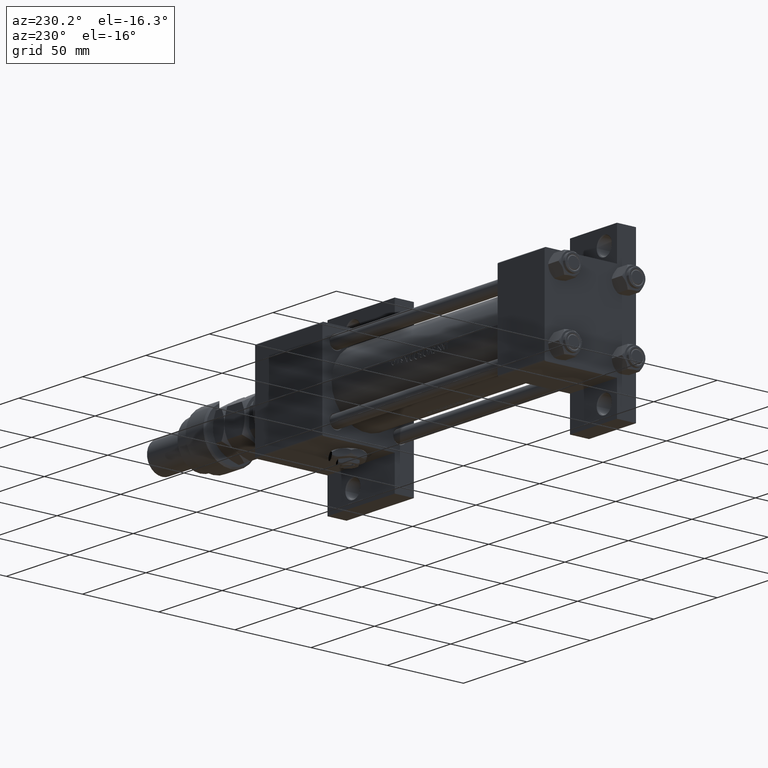
[diagram: clean part render]
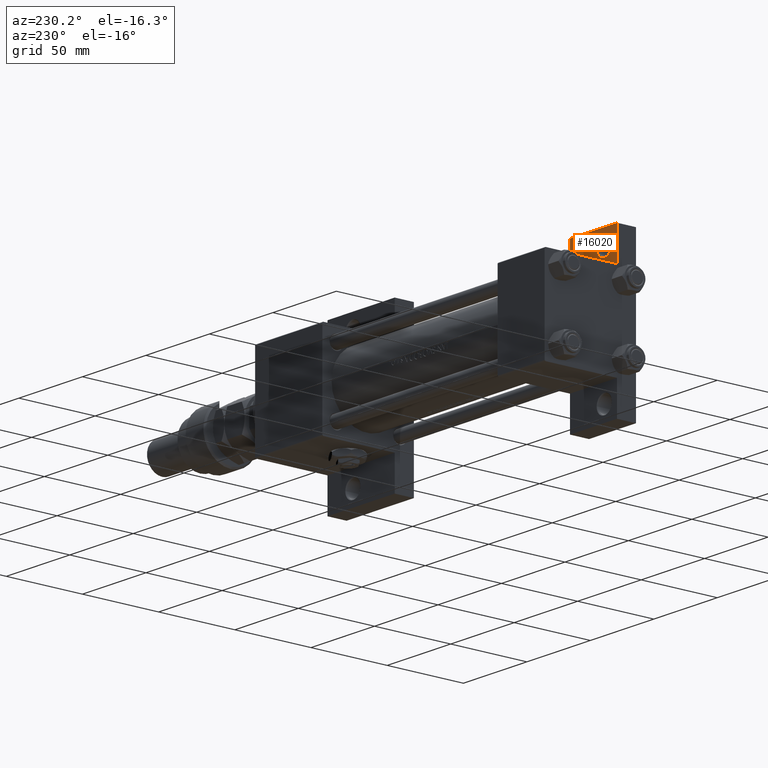
[diagram: same view with one face highlighted and labeled with its STEP entity id]
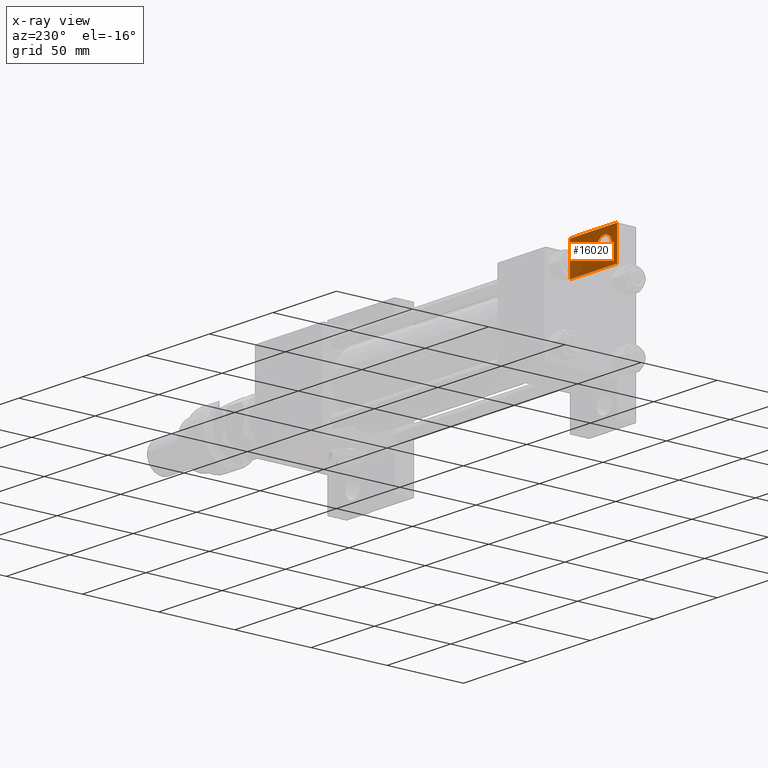
[diagram: x-ray of the same camera — body ghosted, the highlighted face saturated]
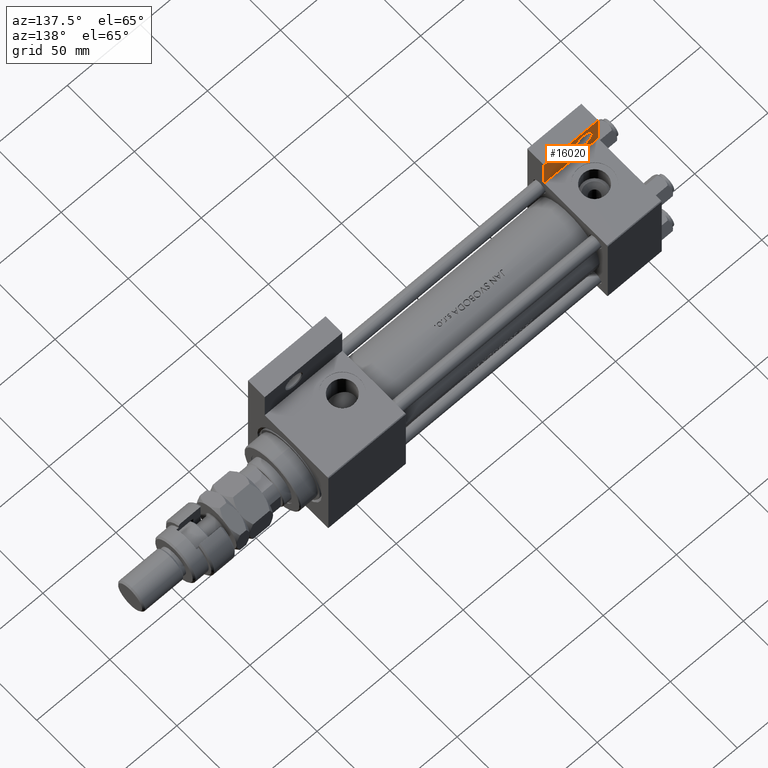
[diagram: same view with one face highlighted and labeled with its STEP entity id]
A machine part, auxiliary view. The second image highlights one B-rep face of the part: STEP entity #16020.
The next image is the same camera in x-ray: the body ghosted, the highlighted face saturated — about 16% of this face is hidden behind the body in this view.
A second angle (auxiliary view) of the same face is appended — the face is thin or edge-on in the first view.
In plain terms, the highlighted planar face has unit normal (0, -1, 0).
Its self-contained STEP definition (entity closure, byte-faithful):
#6 = VERTEX_POINT ( 'NONE', #38517 ) ;
#191 = AXIS2_PLACEMENT_3D ( 'NONE', #6458, #25770, #25518 ) ;
#923 = EDGE_LOOP ( 'NONE', ( #9363, #8657, #39400, #14929 ) ) ;
#1668 = CARTESIAN_POINT ( 'NONE',  ( 3.977209754999733403E-16, -51.49999999999999289, -17.49999999999999645 ) ) ;
#5227 = CARTESIAN_POINT ( 'NONE',  ( 15.99949999999996209, -41.50000000000002132, -17.49999999999999645 ) ) ;
#5532 = CARTESIAN_POINT ( 'NONE',  ( 37.00000000000000000, -30.00000000000000000, -17.49999999999999645 ) ) ;
#5790 = VERTEX_POINT ( 'NONE', #13918 ) ;
#6458 = CARTESIAN_POINT ( 'NONE',  ( 9.999999999999998224, -41.50000000000002132, -17.49999999999999645 ) ) ;
#8597 = FACE_OUTER_BOUND ( 'NONE', #923, .T. ) ;
#8657 = ORIENTED_EDGE ( 'NONE', *, *, #24921, .T. ) ;
#9363 = ORIENTED_EDGE ( 'NONE', *, *, #49564, .T. ) ;
#9795 = LINE ( 'NONE', #18764, #28458 ) ;
#11039 = CARTESIAN_POINT ( 'NONE',  ( -7.145701223179007990E-16, -29.99999999999999645, -17.49999999999999645 ) ) ;
#12919 = VERTEX_POINT ( 'NONE', #36939 ) ;
#13918 = CARTESIAN_POINT ( 'NONE',  ( 3.977209754999747208E-16, -51.49999999999999289, -17.49999999999999645 ) ) ;
#14929 = ORIENTED_EDGE ( 'NONE', *, *, #27602, .T. ) ;
#16020 = ADVANCED_FACE ( 'NONE', ( #27877, #8597 ), #48446, .F. ) ;
#16060 = VECTOR ( 'NONE', #39851, 1000.000000000000000 ) ;
#18764 = CARTESIAN_POINT ( 'NONE',  ( 37.00000000000000000, -51.49999999999999289, -17.49999999999999645 ) ) ;
#19958 = DIRECTION ( 'NONE',  ( -1.000000000000000000, 0.000000000000000000, -0.000000000000000000 ) ) ;
#22118 = CIRCLE ( 'NONE', #191, 5.999499999999962974 ) ;
#22449 = DIRECTION ( 'NONE',  ( -0.000000000000000000, 1.000000000000000000, 0.000000000000000000 ) ) ;
#22777 = AXIS2_PLACEMENT_3D ( 'NONE', #36822, #24707, #19958 ) ;
#23588 = VECTOR ( 'NONE', #33840, 1000.000000000000000 ) ;
#23773 = CARTESIAN_POINT ( 'NONE',  ( -7.145701223179007004E-16, -30.00000000000000355, -17.49999999999999289 ) ) ;
#24549 = ORIENTED_EDGE ( 'NONE', *, *, #40109, .T. ) ;
#24707 = DIRECTION ( 'NONE',  ( 0.000000000000000000, 0.000000000000000000, -1.000000000000000000 ) ) ;
#24921 = EDGE_CURVE ( 'NONE', #25087, #45888, #48835, .T. ) ;
#25087 = VERTEX_POINT ( 'NONE', #5532 ) ;
#25518 = DIRECTION ( 'NONE',  ( -1.000000000000000000, 0.000000000000000000, 0.000000000000000000 ) ) ;
#25770 = DIRECTION ( 'NONE',  ( 0.000000000000000000, 0.000000000000000000, -1.000000000000000000 ) ) ;
#27602 = EDGE_CURVE ( 'NONE', #5790, #6, #30130, .T. ) ;
#27877 = FACE_BOUND ( 'NONE', #34324, .T. ) ;
#28458 = VECTOR ( 'NONE', #22449, 1000.000000000000000 ) ;
#29026 = EDGE_CURVE ( 'NONE', #45888, #5790, #37933, .T. ) ;
#30130 = LINE ( 'NONE', #1668, #23588 ) ;
#31517 = CIRCLE ( 'NONE', #38254, 5.999499999999962974 ) ;
#31793 = DIRECTION ( 'NONE',  ( 0.000000000000000000, 0.000000000000000000, -1.000000000000000000 ) ) ;
#32211 = EDGE_CURVE ( 'NONE', #50183, #12919, #22118, .T. ) ;
#33840 = DIRECTION ( 'NONE',  ( 1.000000000000000000, -1.875376730785737473E-16, 0.000000000000000000 ) ) ;
#34324 = EDGE_LOOP ( 'NONE', ( #42366, #24549 ) ) ;
#36822 = CARTESIAN_POINT ( 'NONE',  ( 0.000000000000000000, 0.000000000000000000, -17.49999999999999645 ) ) ;
#36939 = CARTESIAN_POINT ( 'NONE',  ( 4.000500000000035250, -41.50000000000002132, -17.49999999999999645 ) ) ;
#37404 = CARTESIAN_POINT ( 'NONE',  ( 3.977209754999743757E-16, -51.49999999999998579, -17.49999999999999645 ) ) ;
#37933 = LINE ( 'NONE', #37404, #49817 ) ;
#38254 = AXIS2_PLACEMENT_3D ( 'NONE', #43433, #31793, #51361 ) ;
#38517 = CARTESIAN_POINT ( 'NONE',  ( 37.00000000000000000, -51.50000000000000000, -17.49999999999999645 ) ) ;
#39400 = ORIENTED_EDGE ( 'NONE', *, *, #29026, .T. ) ;
#39851 = DIRECTION ( 'NONE',  ( -1.000000000000000000, 9.376883653928687363E-17, 0.000000000000000000 ) ) ;
#40109 = EDGE_CURVE ( 'NONE', #12919, #50183, #31517, .T. ) ;
#42366 = ORIENTED_EDGE ( 'NONE', *, *, #32211, .T. ) ;
#43433 = CARTESIAN_POINT ( 'NONE',  ( 9.999999999999998224, -41.50000000000002132, -17.49999999999999645 ) ) ;
#45888 = VERTEX_POINT ( 'NONE', #11039 ) ;
#48446 = PLANE ( 'NONE',  #22777 ) ;
#48835 = LINE ( 'NONE', #23773, #16060 ) ;
#49044 = DIRECTION ( 'NONE',  ( 5.173446966594771078E-17, -1.000000000000000000, 0.000000000000000000 ) ) ;
#49564 = EDGE_CURVE ( 'NONE', #6, #25087, #9795, .T. ) ;
#49817 = VECTOR ( 'NONE', #49044, 1000.000000000000000 ) ;
#50183 = VERTEX_POINT ( 'NONE', #5227 ) ;
#51361 = DIRECTION ( 'NONE',  ( -1.000000000000000000, 0.000000000000000000, 0.000000000000000000 ) ) ;